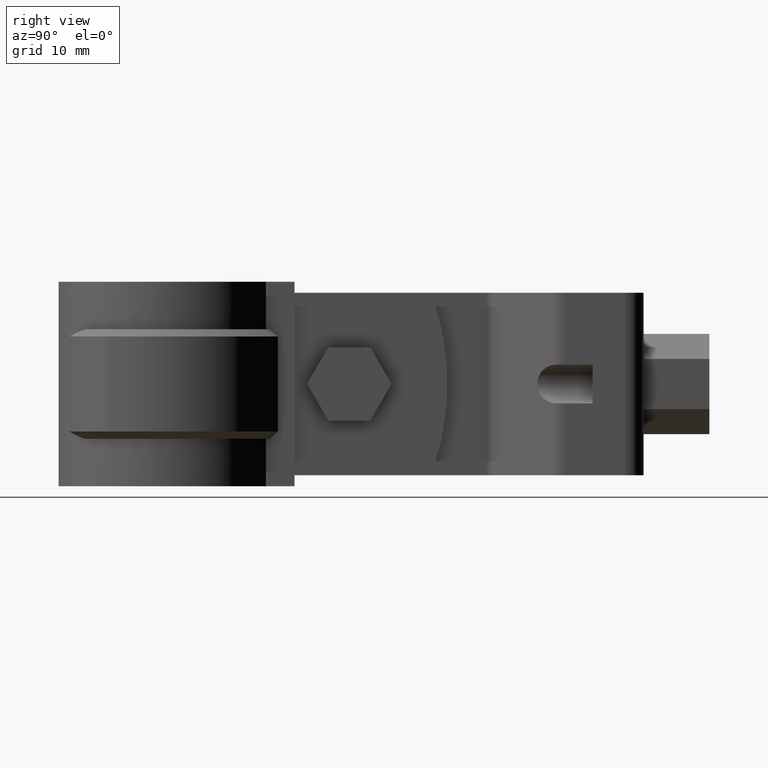
[diagram: clean part render]
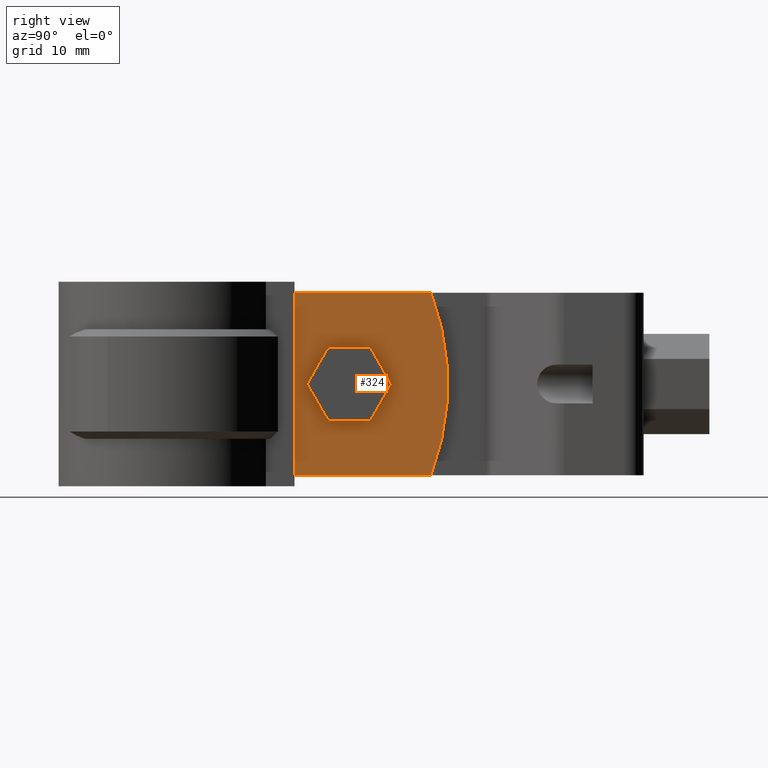
[diagram: same view with one face highlighted and labeled with its STEP entity id]
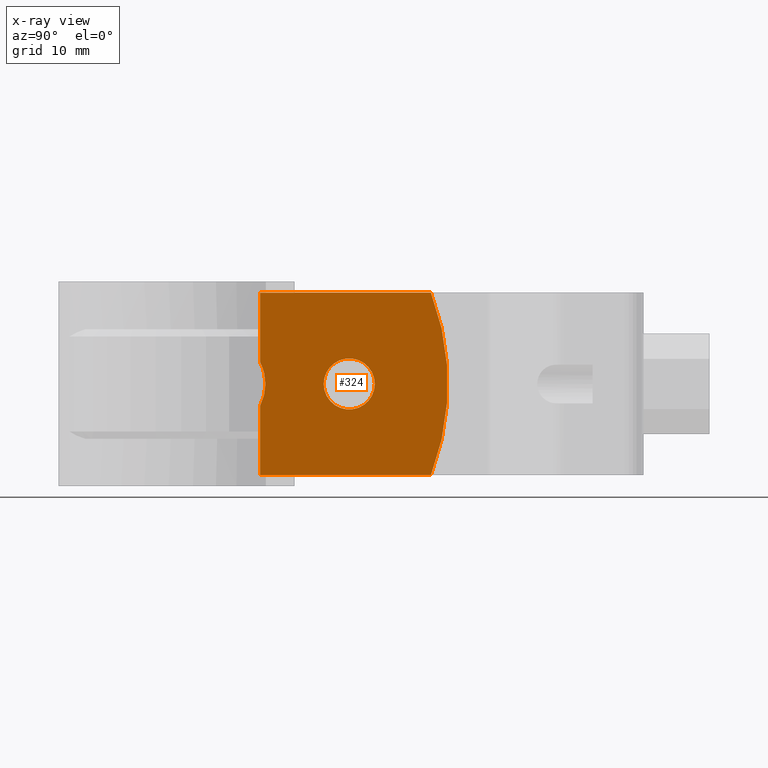
[diagram: x-ray of the same camera — body ghosted, the highlighted face saturated]
A machine part, right view. The second image highlights one B-rep face of the part: STEP entity #324.
The next image is the same camera in x-ray: the body ghosted, the highlighted face saturated — about 0% of this face is hidden behind the body in this view.
In plain terms, the highlighted planar face has unit normal (-1, 0, 0).
Its self-contained STEP definition (entity closure, byte-faithful):
#324 = ADVANCED_FACE( '', ( #541, #542 ), #543, .F. );
#541 = FACE_BOUND( '', #1034, .T. );
#542 = FACE_OUTER_BOUND( '', #1035, .T. );
#543 = PLANE( '', #1036 );
#1034 = EDGE_LOOP( '', ( #2118 ) );
#1035 = EDGE_LOOP( '', ( #2119, #2120, #2121, #2122, #2123, #2124 ) );
#1036 = AXIS2_PLACEMENT_3D( '', #2125, #2126, #2127 );
#2118 = ORIENTED_EDGE( '', *, *, #4522, .F. );
#2119 = ORIENTED_EDGE( '', *, *, #4510, .F. );
#2120 = ORIENTED_EDGE( '', *, *, #4521, .T. );
#2121 = ORIENTED_EDGE( '', *, *, #4523, .T. );
#2122 = ORIENTED_EDGE( '', *, *, #4524, .F. );
#2123 = ORIENTED_EDGE( '', *, *, #4490, .F. );
#2124 = ORIENTED_EDGE( '', *, *, #4518, .T. );
#2125 = CARTESIAN_POINT( '', ( 5.10000000000000, 12.7485724691042, 0.000000000000000 ) );
#2126 = DIRECTION( '', ( -1.00000000000000, 6.12303176911189E-017, 0.000000000000000 ) );
#2127 = DIRECTION( '', ( 6.12303176911189E-017, 1.00000000000000, 0.000000000000000 ) );
#4490 = EDGE_CURVE( '', #5080, #5082, #5083, .T. );
#4510 = EDGE_CURVE( '', #5117, #5111, #5119, .T. );
#4518 = EDGE_CURVE( '', #5080, #5111, #5133, .T. );
#4521 = EDGE_CURVE( '', #5117, #5136, #5138, .T. );
#4522 = EDGE_CURVE( '', #5139, #5139, #5140, .F. );
#4523 = EDGE_CURVE( '', #5136, #5141, #5142, .T. );
#4524 = EDGE_CURVE( '', #5082, #5141, #5143, .T. );
#5080 = VERTEX_POINT( '', #6133 );
#5082 = VERTEX_POINT( '', #6135 );
#5083 = LINE( '', #6136, #6137 );
#5111 = VERTEX_POINT( '', #6238 );
#5117 = VERTEX_POINT( '', #6298 );
#5119 = B_SPLINE_CURVE_WITH_KNOTS( '', 3, ( #6313, #6314, #6315, #6316, #6317, #6318, #6319, #6320, #6321, #6322, #6323, #6324, #6325 ), .UNSPECIFIED., .F., .F., ( 4, 2, 2, 1, 2, 2, 4 ), ( 9.34177181294034E-018, 0.00154494556300112, 0.00231741834450167, 0.00308989112600223, 0.00386236390750278, 0.00463483668900333, 0.00617978225200445 ), .UNSPECIFIED. );
#5133 = LINE( '', #6436, #6437 );
#5136 = VERTEX_POINT( '', #6441 );
#5138 = LINE( '', #6443, #6444 );
#5139 = VERTEX_POINT( '', #6445 );
#5140 = CIRCLE( '', #6446, 3.50000000000000 );
#5141 = VERTEX_POINT( '', #6447 );
#5142 = LINE( '', #6448, #6449 );
#5143 = CIRCLE( '', #6450, 35.0000000000000 );
#6133 = CARTESIAN_POINT( '', ( 5.10000000000000, 12.7485724691042, 0.000000000000000 ) );
#6135 = CARTESIAN_POINT( '', ( 5.10000000000001, 36.1497567387904, 0.000000000000000 ) );
#6136 = CARTESIAN_POINT( '', ( 5.10000000000000, 12.7485724691042, 0.000000000000000 ) );
#6137 = VECTOR( '', #8748, 1000.00000000000 );
#6238 = CARTESIAN_POINT( '', ( 5.10000000000000, 12.7485724691042, -9.51620483456164 ) );
#6298 = CARTESIAN_POINT( '', ( 5.10000000000000, 12.7485724691042, -15.4837951654383 ) );
#6313 = CARTESIAN_POINT( '', ( 5.10000000000000, 12.7485724691042, -15.4837951654384 ) );
#6314 = CARTESIAN_POINT( '', ( 5.10000000000000, 12.9866172798646, -15.0202484555752 ) );
#6315 = CARTESIAN_POINT( '', ( 5.10000000000000, 13.1665509757478, -14.5373748987153 ) );
#6316 = CARTESIAN_POINT( '', ( 5.10000000000000, 13.3513480558411, -13.7847604838031 ) );
#6317 = CARTESIAN_POINT( '', ( 5.10000000000000, 13.3986927600009, -13.5273948064502 ) );
#6318 = CARTESIAN_POINT( '', ( 5.09999999999999, 13.4614587026653, -13.0136804453862 ) );
#6319 = CARTESIAN_POINT( '', ( 5.09999999999985, 13.4929646435615, -12.5002121320409 ) );
#6320 = CARTESIAN_POINT( '', ( 5.09999999999999, 13.4615135256454, -11.9872393541981 ) );
#6321 = CARTESIAN_POINT( '', ( 5.09999999999999, 13.3989828798544, -11.4745112035625 ) );
#6322 = CARTESIAN_POINT( '', ( 5.10000000000000, 13.3517303698018, -11.2170208286787 ) );
#6323 = CARTESIAN_POINT( '', ( 5.10000000000000, 13.1667583011510, -10.4630226674895 ) );
#6324 = CARTESIAN_POINT( '', ( 5.10000000000000, 12.9866118316508, -9.97974093507114 ) );
#6325 = CARTESIAN_POINT( '', ( 5.10000000000000, 12.7485724691042, -9.51620483456164 ) );
#6436 = CARTESIAN_POINT( '', ( 5.10000000000000, 12.7485724691042, 0.000000000000000 ) );
#6437 = VECTOR( '', #8767, 1000.00000000000 );
#6441 = CARTESIAN_POINT( '', ( 5.10000000000000, 12.7485724691042, -25.0000000000000 ) );
#6443 = CARTESIAN_POINT( '', ( 5.10000000000000, 12.7485724691042, 0.000000000000000 ) );
#6444 = VECTOR( '', #8772, 1000.00000000000 );
#6445 = CARTESIAN_POINT( '', ( 5.10000000000000, 21.4580146622353, -12.5000000000000 ) );
#6446 = AXIS2_PLACEMENT_3D( '', #8773, #8774, #8775 );
#6447 = CARTESIAN_POINT( '', ( 5.10000000000001, 36.1497567387904, -25.0000000000000 ) );
#6448 = CARTESIAN_POINT( '', ( 5.10000000000000, 12.7485724691042, -25.0000000000000 ) );
#6449 = VECTOR( '', #8776, 1000.00000000000 );
#6450 = AXIS2_PLACEMENT_3D( '', #8777, #8778, #8779 );
#8748 = DIRECTION( '', ( 6.12303176911189E-017, 1.00000000000000, 0.000000000000000 ) );
#8767 = DIRECTION( '', ( 0.000000000000000, 0.000000000000000, -1.00000000000000 ) );
#8772 = DIRECTION( '', ( 0.000000000000000, 0.000000000000000, -1.00000000000000 ) );
#8773 = CARTESIAN_POINT( '', ( 5.10000000000000, 24.9580146622353, -12.5000000000000 ) );
#8774 = DIRECTION( '', ( -1.00000000000000, 6.12303176911189E-017, 0.000000000000000 ) );
#8775 = DIRECTION( '', ( -6.12303176911189E-017, -1.00000000000000, 0.000000000000000 ) );
#8776 = DIRECTION( '', ( 6.12303176911189E-017, 1.00000000000000, 0.000000000000000 ) );
#8777 = CARTESIAN_POINT( '', ( 5.10000000000001, 3.45801466223531, -12.5000000000000 ) );
#8778 = DIRECTION( '', ( -1.00000000000000, 6.12303176911189E-017, 0.000000000000000 ) );
#8779 = DIRECTION( '', ( -6.12303176911189E-017, -1.00000000000000, 0.000000000000000 ) );